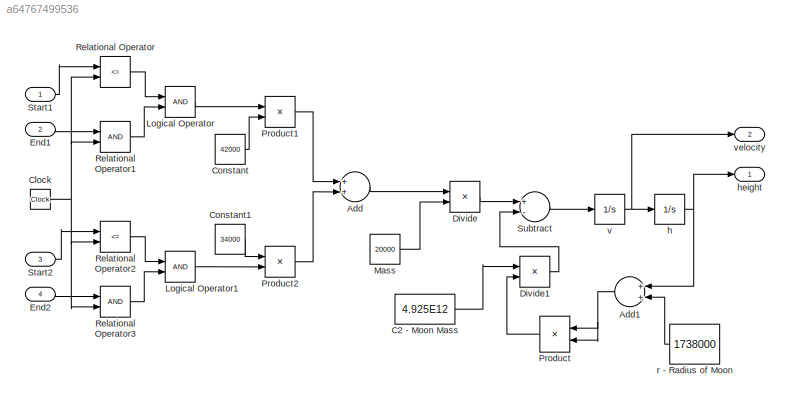
MODEL slx_a64767499536
KIND model
CONFIG AbsTol = auto
CONFIG FixedStep = 0.01
CONFIG MaxStep = auto
CONFIG MinStep = auto
CONFIG RelTol = 1e-3
CONFIG SampleTimeConstraint = Unconstrained
CONFIG Solver = ode4
CONFIG SolverMode = Auto
CONFIG SolverName = ode4
CONFIG StartTime = 0.0
CONFIG StopTime = 100.0
WORKSPACE source: MAT-file member
WORKSPACE End1 = 10
BLOCK [Sum] Add
  InputSameDT = off
  OutDataTypeStr = Inherit: Inherit via internal rule
  Ports = [2, 1]
  SaturateOnIntegerOverflow = off
BLOCK [Sum] Add1
  InputSameDT = off
  OutDataTypeStr = Inherit: Inherit via internal rule
  Ports = [2, 1]
  SaturateOnIntegerOverflow = off
BLOCK [Constant] C2 - Moon Mass 
  Value = 4.925E12
BLOCK [Clock] Clock
BLOCK [Constant] Constant
  Value = 42000
BLOCK [Constant] Constant1
  Value = 34000
BLOCK [Product] Divide
  InputSameDT = off
  Inputs = */
  OutDataTypeStr = Inherit: Inherit via internal rule
  Ports = [2, 1]
  RndMeth = Floor
  SaturateOnIntegerOverflow = off
BLOCK [Product] Divide1
  InputSameDT = off
  Inputs = */
  OutDataTypeStr = Inherit: Inherit via internal rule
  Ports = [2, 1]
  RndMeth = Floor
  SaturateOnIntegerOverflow = off
BLOCK [Inport] End1
  IconDisplay = Port number
  Port = 2
BLOCK [Inport] End2
  IconDisplay = Port number
  Port = 4
BLOCK [Logic] Logical Operator
  AllPortsSameDT = off
  OutDataTypeStr = boolean
  Ports = [2, 1]
BLOCK [Logic] Logical Operator1
  AllPortsSameDT = off
  OutDataTypeStr = boolean
  Ports = [2, 1]
BLOCK [Constant] Mass
  Value = 20000
BLOCK [Product] Product
  InputSameDT = off
  OutDataTypeStr = Inherit: Inherit via internal rule
  Ports = [2, 1]
  RndMeth = Floor
  SaturateOnIntegerOverflow = off
BLOCK [Product] Product1
  InputSameDT = off
  OutDataTypeStr = Inherit: Inherit via internal rule
  Ports = [2, 1]
  RndMeth = Floor
  SaturateOnIntegerOverflow = off
BLOCK [Product] Product2
  InputSameDT = off
  OutDataTypeStr = Inherit: Inherit via internal rule
  Ports = [2, 1]
  RndMeth = Floor
  SaturateOnIntegerOverflow = off
BLOCK [RelationalOperator] Relational Operator
  InputSameDT = off
  Operator = <=
  OutDataTypeStr = boolean
  Ports = [2, 1]
BLOCK [RelationalOperator] Relational Operator1
  InputSameDT = off
  OutDataTypeStr = boolean
  Ports = [2, 1]
BLOCK [RelationalOperator] Relational Operator2
  InputSameDT = off
  Operator = <=
  OutDataTypeStr = boolean
  Ports = [2, 1]
BLOCK [RelationalOperator] Relational Operator3
  InputSameDT = off
  OutDataTypeStr = boolean
  Ports = [2, 1]
BLOCK [Inport] Start1
  IconDisplay = Port number
BLOCK [Inport] Start2
  IconDisplay = Port number
  Port = 3
BLOCK [Sum] Subtract
  InputSameDT = off
  Inputs = +-
  OutDataTypeStr = Inherit: Inherit via internal rule
  Ports = [2, 1]
  SaturateOnIntegerOverflow = off
BLOCK [Integrator] h
  InitialCondition = 1000
  Ports = [1, 1]
BLOCK [Outport] height
  IconDisplay = Port number
BLOCK [Constant] r - Radius of Moon
  Value = 1738000
BLOCK [Integrator] v
  InitialCondition = -10
  Ports = [1, 1]
BLOCK [Outport] velocity
  IconDisplay = Port number
  Port = 2
NET Add1:1 -> Product:1, Product:2
LINE Add:1 -> Divide:1
LINE C2 - Moon Mass :1 -> Divide1:1
NET Clock:1 -> Relational Operator1:2, Relational Operator2:2, Relational Operator3:2, Relational Operator:2
LINE Constant1:1 -> Product2:1
LINE Constant:1 -> Product1:2
LINE Divide1:1 -> Subtract:2
LINE Divide:1 -> Subtract:1
LINE End1:1 -> Relational Operator1:1
LINE End2:1 -> Relational Operator3:1
LINE Logical Operator1:1 -> Product2:2
LINE Logical Operator:1 -> Product1:1
LINE Mass:1 -> Divide:2
LINE Product1:1 -> Add:1
LINE Product2:1 -> Add:2
LINE Product:1 -> Divide1:2
LINE Relational Operator1:1 -> Logical Operator:2
LINE Relational Operator2:1 -> Logical Operator1:1
LINE Relational Operator3:1 -> Logical Operator1:2
LINE Relational Operator:1 -> Logical Operator:1
LINE Start1:1 -> Relational Operator:1
LINE Start2:1 -> Relational Operator2:1
LINE Subtract:1 -> v:1
NET h:1 -> Add1:1, height:1
LINE r - Radius of Moon:1 -> Add1:2
NET v:1 -> h:1, velocity:1
note: NET lines group one-source signal fan-out (src -> all destinations, sorted); 1:1 wires keep LINE
